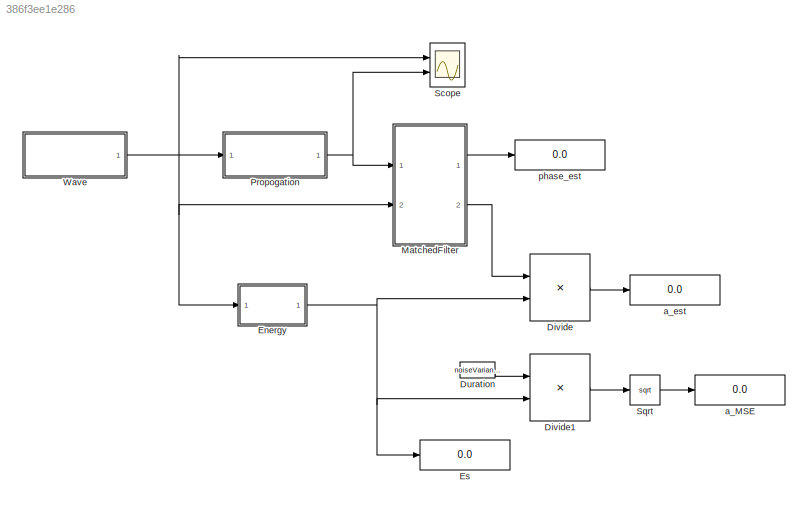
MODEL slx_386f3ee1e286
KIND model
CONFIG InitFcn = param
BLOCK [Product] Divide
  InputSameDT = off
  Inputs = */
  OutDataTypeStr = Inherit: Inherit via internal rule
  Ports = [2, 1]
  RndMeth = Floor
  SaturateOnIntegerOverflow = off
BLOCK [Product] Divide1
  InputSameDT = off
  Inputs = */
  OutDataTypeStr = Inherit: Inherit via internal rule
  Ports = [2, 1]
  RndMeth = Floor
  SaturateOnIntegerOverflow = off
BLOCK [Constant] Duration
  Value = noiseVariance*dt
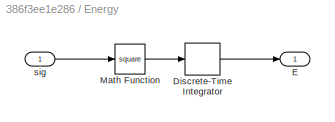
BLOCK [SubSystem] Energy
  FunctionWithSeparateData = off
  MaskHideContents = off
  MinAlgLoopOccurrences = off
  Opaque = off
  Ports = [1, 1]
  PropExecContextOutsideSubsystem = off
  RTWSystemCode = Auto
  RequestExecContextInheritance = off
BLOCK [DiscreteIntegrator] Energy/Discrete-Time Integrator
  ICPrevOutput = DiscIntNeverNeededParam
  ICPrevScaledInput = DiscIntNeverNeededParam
  InitialCondition = 1e-10
  Ports = [1, 1]
  SampleTime = dt
BLOCK [Outport] Energy/E
  IconDisplay = Port number
BLOCK [Math] Energy/Math Function
  Operator = square
  Ports = [1, 1]
BLOCK [Inport] Energy/sig
  IconDisplay = Port number
BLOCK [Display] Es
  Decimation = 1
  Lockdown = off
  Ports = [1]
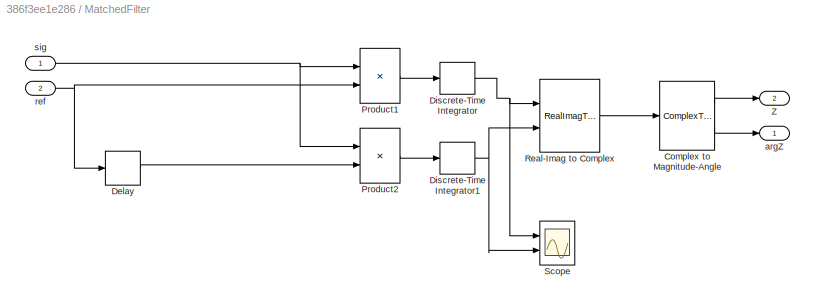
BLOCK [SubSystem] MatchedFilter
  FunctionWithSeparateData = off
  MaskHideContents = off
  MinAlgLoopOccurrences = off
  Opaque = off
  Ports = [2, 2]
  PropExecContextOutsideSubsystem = off
  RTWSystemCode = Auto
  RequestExecContextInheritance = off
BLOCK [ComplexToMagnitudeAngle] MatchedFilter/Complex to Magnitude-Angle
  Ports = [1, 2]
BLOCK [Delay] MatchedFilter/Delay
  DelayLength = 1
  InitialCondition = 0
  InputPortMap = u0
  Ports = [1, 1]
BLOCK [DiscreteIntegrator] MatchedFilter/Discrete-Time Integrator
  ICPrevOutput = DiscIntNeverNeededParam
  ICPrevScaledInput = DiscIntNeverNeededParam
  Ports = [1, 1]
  SampleTime = dt
BLOCK [DiscreteIntegrator] MatchedFilter/Discrete-Time Integrator1
  ICPrevOutput = DiscIntNeverNeededParam
  ICPrevScaledInput = DiscIntNeverNeededParam
  Ports = [1, 1]
  SampleTime = dt
BLOCK [Product] MatchedFilter/Product1
  InputSameDT = off
  OutDataTypeStr = Inherit: Inherit via internal rule
  Ports = [2, 1]
  SaturateOnIntegerOverflow = off
BLOCK [Product] MatchedFilter/Product2
  InputSameDT = off
  OutDataTypeStr = Inherit: Inherit via internal rule
  Ports = [2, 1]
  SaturateOnIntegerOverflow = off
BLOCK [RealImagToComplex] MatchedFilter/Real-Imag to Complex
  Ports = [2, 1]
BLOCK [Scope] MatchedFilter/Scope
  DataFormat = StructureWithTime
  Floating = off
  LimitDataPoints = off
  NumInputPorts = 2
  Ports = [2]
  SampleTime = 0
  SaveName = ScopeData1
  ShowLegends = off
  TimeRange = 1
  YMax = 1~6
  YMin = -1~-4
  ZoomMode = yonly
BLOCK [Outport] MatchedFilter/Z
  IconDisplay = Port number
  Port = 2
BLOCK [Outport] MatchedFilter/argZ
  IconDisplay = Port number
BLOCK [Inport] MatchedFilter/ref
  IconDisplay = Port number
  Port = 2
BLOCK [Inport] MatchedFilter/sig
  IconDisplay = Port number
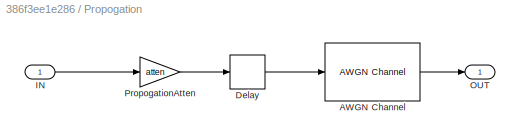
BLOCK [SubSystem] Propogation
  FunctionWithSeparateData = off
  MaskHideContents = off
  MinAlgLoopOccurrences = off
  Opaque = off
  Ports = [1, 1]
  PropExecContextOutsideSubsystem = off
  RTWSystemCode = Auto
  RequestExecContextInheritance = off
BLOCK [Reference] Propogation/AWGN Channel  REF=commchan3/AWGN
Channel
  EbNodB = 10
  EsNodB = 10
  InputProcessing = Columns as channels (frame based)
  Ports = [1, 1]
  Ps = 0.01
  SNRdB = 0
  SourceBlock = commchan3/AWGN\nChannel
  SourceType = AWGN Channel
  Tsym = 1
  UserDataPersistent = on
  bitsPerSym = 1
  noiseMode = Variance from mask
  seed = 67
  variance = noiseVariance
BLOCK [Delay] Propogation/Delay
  DelayLength = delay
  InitialCondition = 0
  InputPortMap = u0
  Ports = [1, 1]
BLOCK [Inport] Propogation/IN
  IconDisplay = Port number
BLOCK [Outport] Propogation/OUT
  IconDisplay = Port number
BLOCK [Gain] Propogation/PropogationAtten
  Gain = atten
  OutDataTypeStr = Inherit: Inherit via internal rule
  ParamDataTypeStr = Inherit: Inherit via internal rule
  SaturateOnIntegerOverflow = off
BLOCK [Scope] Scope
  DataFormat = StructureWithTime
  Floating = off
  LimitDataPoints = off
  NumInputPorts = 2
  Ports = [2]
  SampleTime = 0
  ShowLegends = off
  TimeRange = 1
  YMax = 1~6
  YMin = -1~-4
  ZoomMode = yonly
BLOCK [Sqrt] Sqrt
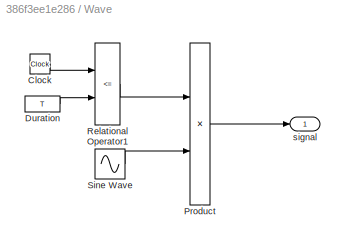
BLOCK [SubSystem] Wave
  FunctionWithSeparateData = off
  MaskHideContents = off
  MinAlgLoopOccurrences = off
  Opaque = off
  Ports = [0, 1]
  PropExecContextOutsideSubsystem = off
  RTWSystemCode = Auto
  RequestExecContextInheritance = off
BLOCK [Clock] Wave/Clock
BLOCK [Constant] Wave/Duration
  Value = T
BLOCK [Product] Wave/Product
  InputSameDT = off
  OutDataTypeStr = Inherit: Inherit via internal rule
  Ports = [2, 1]
  SaturateOnIntegerOverflow = off
BLOCK [RelationalOperator] Wave/Relational Operator1
  InputSameDT = off
  Operator = <=
  OutDataTypeStr = boolean
  Ports = [2, 1]
BLOCK [Sin] Wave/Sine Wave
  Amplitude = ampl
  Frequency = 2*pi*freq
  Phase = 2*pi*rand(1)
  Ports = [0, 1]
  SampleTime = dt
BLOCK [Outport] Wave/signal
  IconDisplay = Port number
BLOCK [Display] a_MSE
  Decimation = 1
  Lockdown = off
  Ports = [1]
BLOCK [Display] a_est
  Decimation = 1
  Lockdown = off
  Ports = [1]
BLOCK [Display] phase_est
  Decimation = 1
  Lockdown = off
  Ports = [1]
LINE Divide1:1 -> Sqrt:1
LINE Divide:1 -> a_est:1
LINE Duration:1 -> Divide1:1
LINE Energy/Discrete-Time Integrator:1 -> Energy/E:1
LINE Energy/Math Function:1 -> Energy/Discrete-Time Integrator:1
LINE Energy/sig:1 -> Energy/Math Function:1
NET Energy:1 -> Divide1:2, Divide:2, Es:1
LINE MatchedFilter/Complex to Magnitude-Angle:1 -> MatchedFilter/Z:1
LINE MatchedFilter/Complex to Magnitude-Angle:2 -> MatchedFilter/argZ:1
LINE MatchedFilter/Delay:1 -> MatchedFilter/Product2:2
NET MatchedFilter/Discrete-Time Integrator1:1 -> MatchedFilter/Real-Imag to Complex:2, MatchedFilter/Scope:2
NET MatchedFilter/Discrete-Time Integrator:1 -> MatchedFilter/Real-Imag to Complex:1, MatchedFilter/Scope:1
LINE MatchedFilter/Product1:1 -> MatchedFilter/Discrete-Time Integrator:1
LINE MatchedFilter/Product2:1 -> MatchedFilter/Discrete-Time Integrator1:1
LINE MatchedFilter/Real-Imag to Complex:1 -> MatchedFilter/Complex to Magnitude-Angle:1
NET MatchedFilter/ref:1 -> MatchedFilter/Delay:1, MatchedFilter/Product1:2
NET MatchedFilter/sig:1 -> MatchedFilter/Product1:1, MatchedFilter/Product2:1
LINE MatchedFilter:1 -> phase_est:1
LINE MatchedFilter:2 -> Divide:1
LINE Propogation/AWGN Channel:1 -> Propogation/OUT:1
LINE Propogation/Delay:1 -> Propogation/AWGN Channel:1
LINE Propogation/IN:1 -> Propogation/PropogationAtten:1
LINE Propogation/PropogationAtten:1 -> Propogation/Delay:1
NET Propogation:1 -> MatchedFilter:1, Scope:2
LINE Sqrt:1 -> a_MSE:1
LINE Wave/Clock:1 -> Wave/Relational Operator1:1
LINE Wave/Duration:1 -> Wave/Relational Operator1:2
LINE Wave/Product:1 -> Wave/signal:1
LINE Wave/Relational Operator1:1 -> Wave/Product:1
LINE Wave/Sine Wave:1 -> Wave/Product:2
NET Wave:1 -> Energy:1, MatchedFilter:2, Propogation:1, Scope:1
note: NET lines group one-source signal fan-out (src -> all destinations, sorted); 1:1 wires keep LINE
